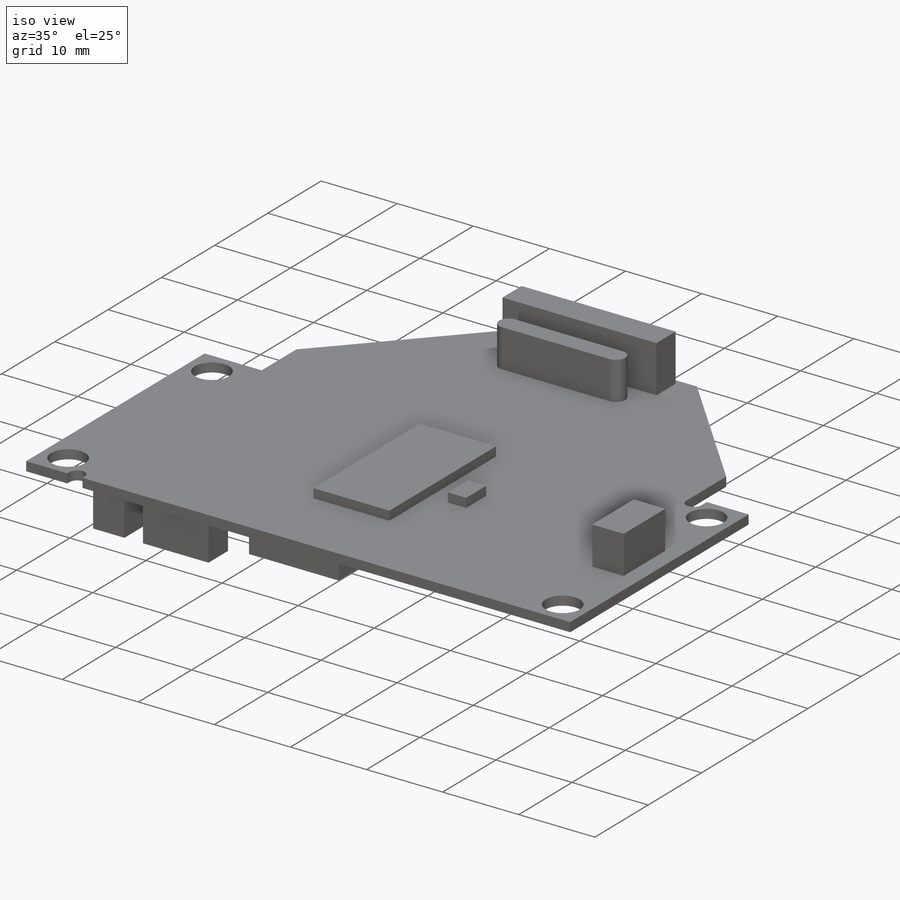
[diagram: iso view]
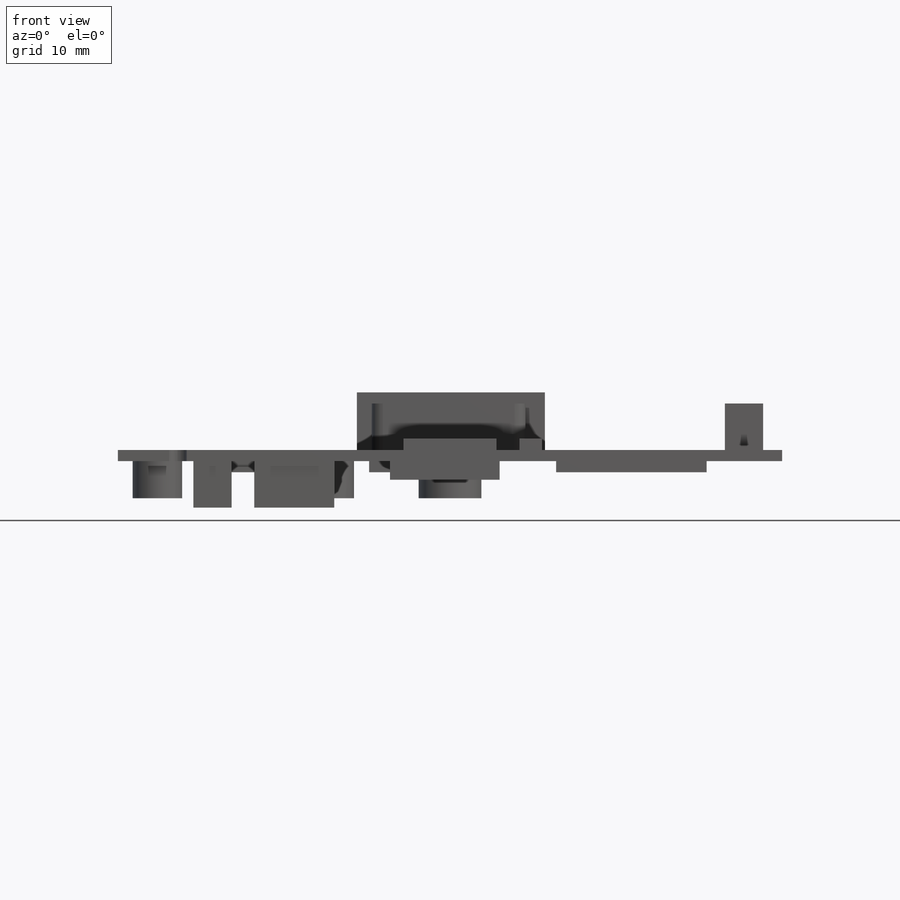
[diagram: front view]
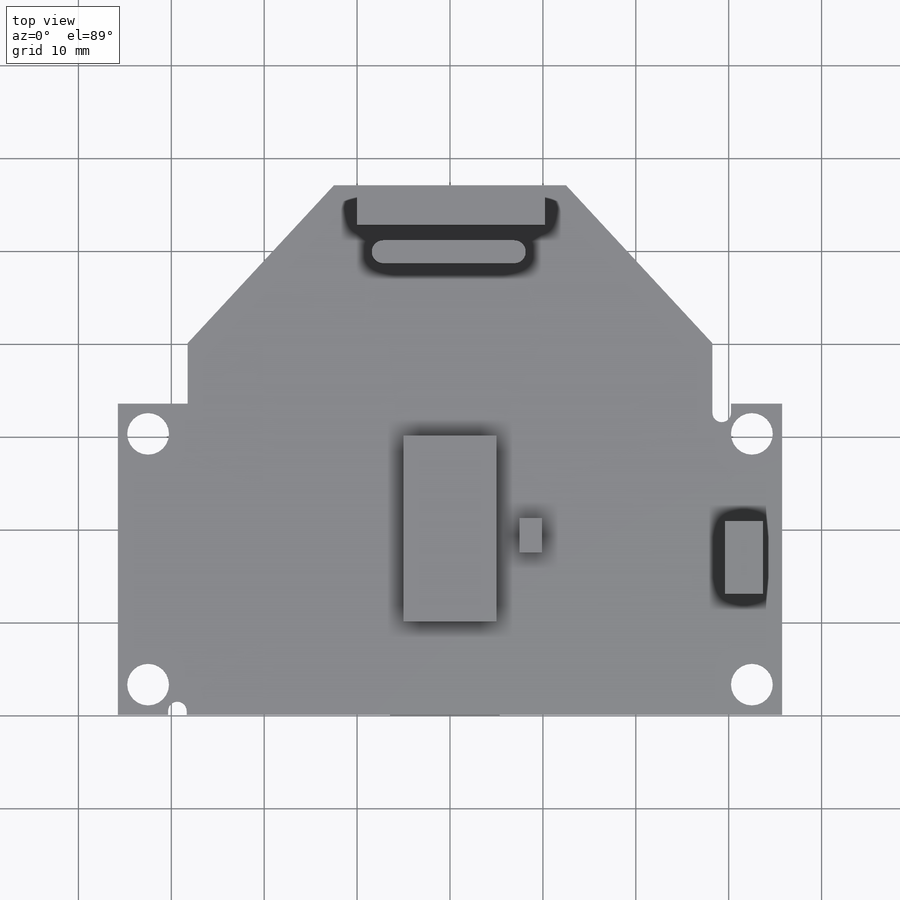
[diagram: top view]
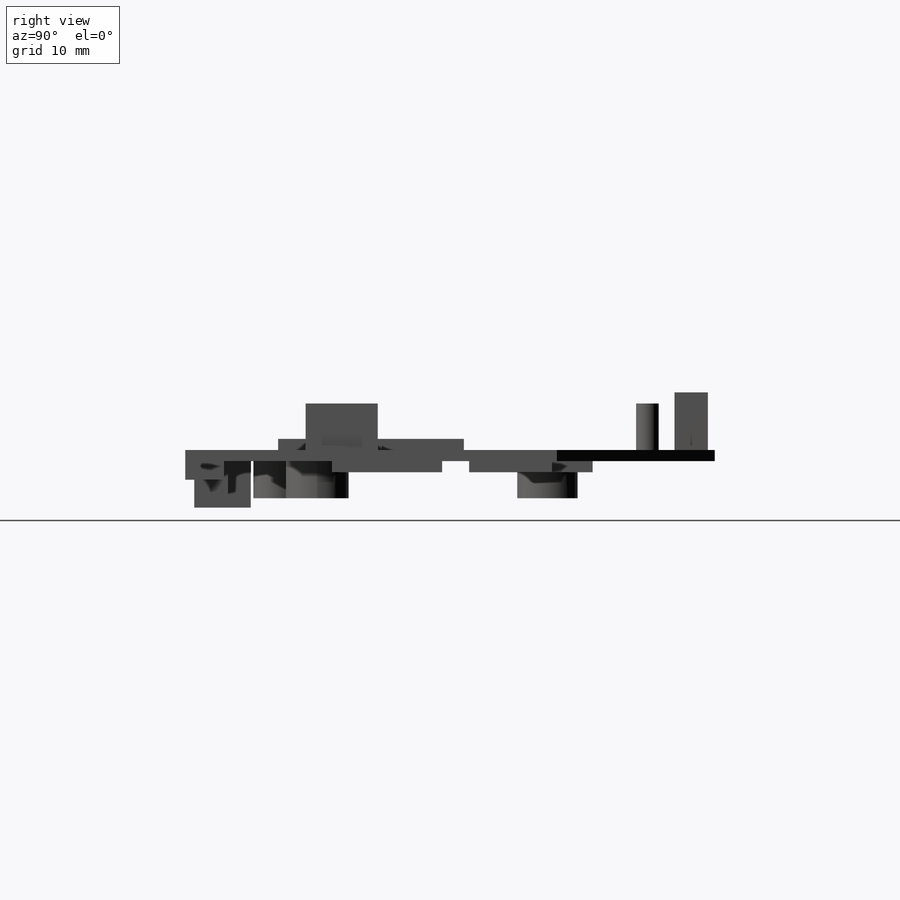
[diagram: right view]
SOLIDWORKS PART (.sldprt)
format: sldprt  version: not decoded by parser v0  size: 368,640 bytes
history: native  units: mm
features: sketch x9, extrude x8, plane x3, material x1, cut_extrude x1 (+8 scaffold rows collapsed)
feature tree (30):
  scaffold x8  (default folders/planes/origin — collapsed)
  material  "Matériau <non spécifié>"
  plane  "Plan de face"
  plane  "Plan de dessus"
  plane  "Plan de droite"
  sketch  "Esquisse1"  dims[c1.D7=4.5mm c1.D10=4.5mm c1.D1=35.75mm c1.D2=33.5mm c1.D3=7.5mm c1.D4=6.5mm c1.D5=57.0mm c1.D6=12.5mm c1.D8=3.25mm c1.D9=3.25mm c2.D10=28.25mm]
  extrude  "Extrusion1"  Depth=1.2mm
  sketch  "Esquisse2"  dims[D2=1.0mm D3=2.0mm D1=1.0mm]
  cut_extrude  "Extrusion2"  Depth=1.2mm
  sketch  "Esquisse3"  dims[D1=10.0mm D2=20.0mm D3=10.0mm D4=5.0mm D5=8.5mm D6=4.0mm]
  extrude  "Extrusion3"  Depth=1.2mm
  sketch  "Esquisse4"
  extrude  "Extrusion4"  Depth=5mm
  sketch  "Esquisse5"
  extrude  "Extrusion5"  Depth=6.2mm
  sketch  "Esquisse6"
  extrude  "Extrusion6"  Depth=1.2mm
  sketch  "Esquisse7"
  extrude  "Extrusion7"  Depth=4mm
  sketch  "Esquisse8"
  extrude  "Extrusion8"  Depth=2mm
  sketch  "Esquisse9"
  extrude  "Extrusion9"  Depth=5mm
decode coverage: 12 of 18 modeling features carry decoded parameters
note: suppression state not decoded; provenance and decode notes live in map.json
